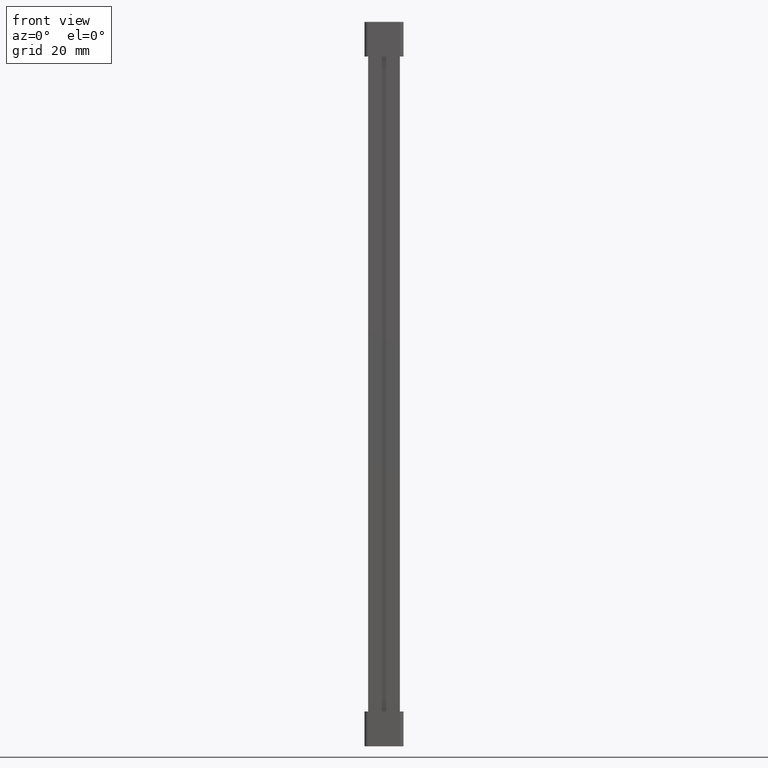
[diagram: clean part render]
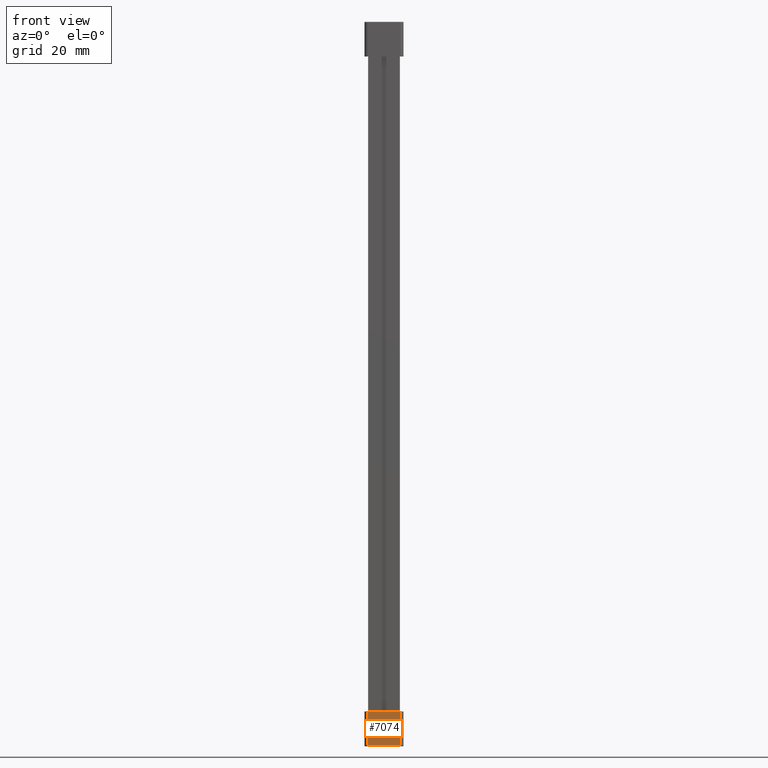
[diagram: same view with one face highlighted and labeled with its STEP entity id]
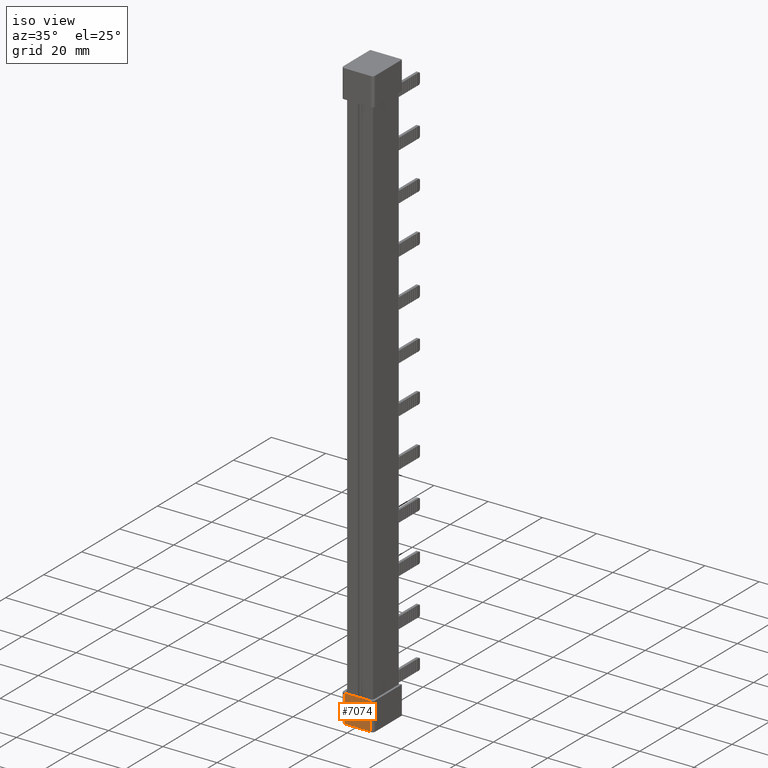
[diagram: same view with one face highlighted and labeled with its STEP entity id]
A machine part, front view. The second image highlights one B-rep face of the part: STEP entity #7074.
A second angle (iso view) of the same face is appended — the face is thin or edge-on in the first view.
In plain terms, the highlighted planar face has unit normal (0, 1, 0).
Its self-contained STEP definition (entity closure, byte-faithful):
#3611 = CARTESIAN_POINT ( 'NONE',  ( 9.700000000271515400, -1.399999999999835400, 10.50000000000672200 ) ) ;
#3625 = PLANE ( 'NONE',  #12209 ) ;
#3629 = DIRECTION ( 'NONE',  ( 0.0000000000000000000, 1.000000000000000000, 0.0000000000000000000 ) ) ;
#3630 = DIRECTION ( 'NONE',  ( 0.0000000000000000000, -0.0000000000000000000, 1.000000000000000000 ) ) ;
#3649 = FACE_OUTER_BOUND ( 'NONE', #8659, .T. ) ;
#4051 = VECTOR ( 'NONE', #18037, 1000.000000000000000 ) ;
#4618 = VECTOR ( 'NONE', #18064, 1000.000000000000000 ) ;
#4992 = VECTOR ( 'NONE', #19849, 1000.000000000000000 ) ;
#5029 = VECTOR ( 'NONE', #19594, 1000.000000000000000 ) ;
#7074 = ADVANCED_FACE ( 'NONE', ( #3649 ), #3625, .F. ) ;
#7895 = EDGE_CURVE ( 'NONE', #14122, #14080, #18052, .T. ) ;
#7906 = EDGE_CURVE ( 'NONE', #14060, #14061, #18072, .T. ) ;
#8341 = EDGE_CURVE ( 'NONE', #14080, #14060, #19591, .T. ) ;
#8659 = EDGE_LOOP ( 'NONE', ( #12871, #12860, #12833, #12843 ) ) ;
#11884 = EDGE_CURVE ( 'NONE', #14061, #14122, #19840, .T. ) ;
#12209 = AXIS2_PLACEMENT_3D ( 'NONE', #3611, #3629, #3630 ) ;
#12833 = ORIENTED_EDGE ( 'NONE', *, *, #7895, .F. ) ;
#12843 = ORIENTED_EDGE ( 'NONE', *, *, #11884, .F. ) ;
#12860 = ORIENTED_EDGE ( 'NONE', *, *, #8341, .F. ) ;
#12871 = ORIENTED_EDGE ( 'NONE', *, *, #7906, .F. ) ;
#14060 = VERTEX_POINT ( 'NONE', #21892 ) ;
#14061 = VERTEX_POINT ( 'NONE', #21910 ) ;
#14080 = VERTEX_POINT ( 'NONE', #21927 ) ;
#14122 = VERTEX_POINT ( 'NONE', #21975 ) ;
#18037 = DIRECTION ( 'NONE',  ( -0.0000000000000000000, 0.0000000000000000000, -1.000000000000000000 ) ) ;
#18042 = CARTESIAN_POINT ( 'NONE',  ( 9.700000000271515400, -1.399999999999835400, 10.50000000000672200 ) ) ;
#18052 = LINE ( 'NONE', #18042, #4051 ) ;
#18064 = DIRECTION ( 'NONE',  ( 0.0000000000000000000, -0.0000000000000000000, 1.000000000000000000 ) ) ;
#18072 = LINE ( 'NONE', #18078, #4618 ) ;
#18078 = CARTESIAN_POINT ( 'NONE',  ( -0.09999999972138892700, -1.399999999999835400, 10.50000000000672200 ) ) ;
#19591 = LINE ( 'NONE', #19592, #5029 ) ;
#19592 = CARTESIAN_POINT ( 'NONE',  ( 9.700000000271515400, -1.399999999999835400, 0.2000000000067156400 ) ) ;
#19594 = DIRECTION ( 'NONE',  ( -1.000000000000000000, -0.0000000000000000000, 0.0000000000000000000 ) ) ;
#19840 = LINE ( 'NONE', #19883, #4992 ) ;
#19849 = DIRECTION ( 'NONE',  ( 1.000000000000000000, 0.0000000000000000000, 6.924738560343257600E-013 ) ) ;
#19883 = CARTESIAN_POINT ( 'NONE',  ( 9.700000000270684100, -1.399999999999835400, 10.50000000000672200 ) ) ;
#21892 = CARTESIAN_POINT ( 'NONE',  ( -0.09999999972138892700, -1.399999999999835400, 0.2000000000033186600 ) ) ;
#21910 = CARTESIAN_POINT ( 'NONE',  ( -0.09999999972495161900, -1.399999999999835400, 10.49999999999993200 ) ) ;
#21927 = CARTESIAN_POINT ( 'NONE',  ( 9.700000000275080600, -1.399999999999835400, 0.2000000000067156400 ) ) ;
#21975 = CARTESIAN_POINT ( 'NONE',  ( 9.700000000271515400, -1.399999999999835400, 10.50000000000672000 ) ) ;